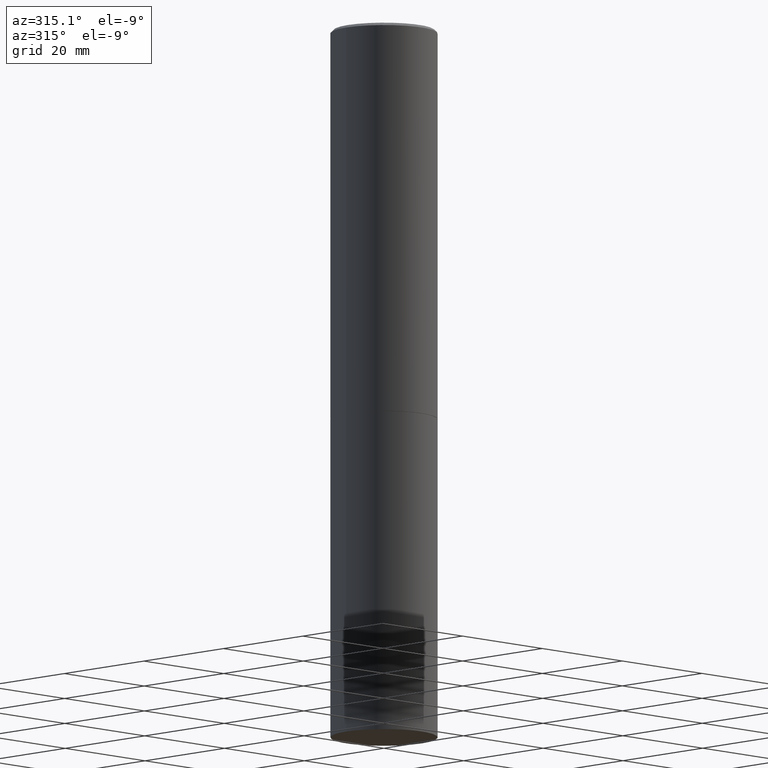
[diagram: clean part render]
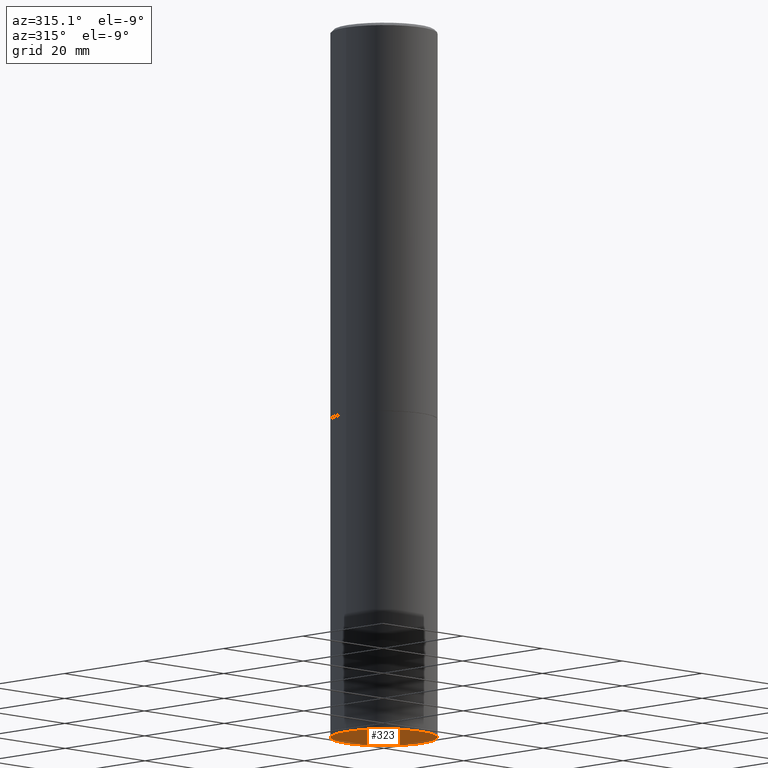
[diagram: same view with one face highlighted and labeled with its STEP entity id]
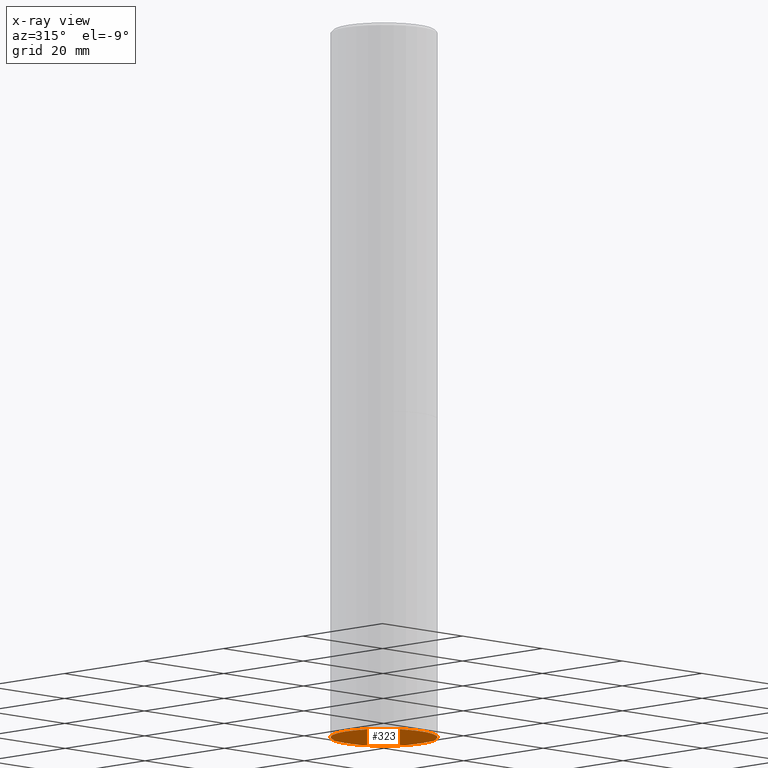
[diagram: x-ray of the same camera — body ghosted, the highlighted face saturated]
A machine part, auxiliary view. The second image highlights one B-rep face of the part: STEP entity #323.
The next image is the same camera in x-ray: the body ghosted, the highlighted face saturated — about 0% of this face is hidden behind the body in this view.
In plain terms, the highlighted planar face has unit normal (0, -0, -1).
Its self-contained STEP definition (entity closure, byte-faithful):
#11 = CIRCLE ( 'NONE', #336, 0.3750000000000000555 ) ;
#14 = EDGE_CURVE ( 'NONE', #320, #322, #11, .T. ) ;
#55 = CARTESIAN_POINT ( 'NONE',  ( 2.618611004132472290E-15, 0.3749999999999825695, -5.000000000000000888 ) ) ;
#60 = ORIENTED_EDGE ( 'NONE', *, *, #184, .F. ) ;
#67 = DIRECTION ( 'NONE',  ( -2.445468806185136597E-29, 3.491481338843145583E-15, 1.000000000000000000 ) ) ;
#78 = CARTESIAN_POINT ( 'NONE',  ( 0.3750000000000000555, -2.007601769834807990E-14, -5.000000000000000000 ) ) ;
#150 = ORIENTED_EDGE ( 'NONE', *, *, #14, .F. ) ;
#164 = DIRECTION ( 'NONE',  ( 2.438088387897960049E-29, -3.491481338843145188E-15, -1.000000000000000000 ) ) ;
#165 = AXIS2_PLACEMENT_3D ( 'NONE', #335, #344, #194 ) ;
#184 = EDGE_CURVE ( 'NONE', #322, #320, #207, .T. ) ;
#187 = CARTESIAN_POINT ( 'NONE',  ( -0.3750000000000000555, -1.086495492891681496E-14, -5.000000000000000000 ) ) ;
#194 = DIRECTION ( 'NONE',  ( 1.000000000000000000, -6.982962677686266711E-15, 0.000000000000000000 ) ) ;
#207 = CIRCLE ( 'NONE', #165, 0.3750000000000000555 ) ;
#219 = PLANE ( 'NONE',  #293 ) ;
#224 = EDGE_LOOP ( 'NONE', ( #150, #60 ) ) ;
#273 = FACE_OUTER_BOUND ( 'NONE', #224, .T. ) ;
#288 = DIRECTION ( 'NONE',  ( 1.000000000000000000, -6.982962677686266711E-15, 0.000000000000000000 ) ) ;
#293 = AXIS2_PLACEMENT_3D ( 'NONE', #55, #164, #304 ) ;
#304 = DIRECTION ( 'NONE',  ( -1.000000000000000000, 6.982962677686265922E-15, -4.876176775795935793E-29 ) ) ;
#318 = CARTESIAN_POINT ( 'NONE',  ( 1.222734403092568523E-28, -1.745740669421572989E-14, -5.000000000000000000 ) ) ;
#320 = VERTEX_POINT ( 'NONE', #78 ) ;
#322 = VERTEX_POINT ( 'NONE', #187 ) ;
#323 = ADVANCED_FACE ( 'NONE', ( #273 ), #219, .T. ) ;
#335 = CARTESIAN_POINT ( 'NONE',  ( 1.222734403092568523E-28, -1.745740669421572989E-14, -5.000000000000000000 ) ) ;
#336 = AXIS2_PLACEMENT_3D ( 'NONE', #318, #67, #288 ) ;
#344 = DIRECTION ( 'NONE',  ( -2.445468806185136597E-29, 3.491481338843145583E-15, 1.000000000000000000 ) ) ;